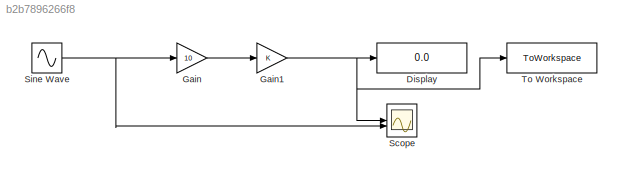
MODEL slx_b2b7896266f8
KIND model
CONFIG AbsTol = auto
CONFIG EnableMultiTasking = off
CONFIG FixedStep = auto
CONFIG MaxStep = auto
CONFIG MinStep = auto
CONFIG RelTol = 1e-3
CONFIG SampleTimeConstraint = Unconstrained
CONFIG SolverName = VariableStepAuto
CONFIG StartTime = 0.0
CONFIG StopTime = 1000000
BLOCK [Display] Display
  Decimation = 1
BLOCK [Gain] Gain
  Gain = 10
BLOCK [Gain] Gain1
BLOCK [Scope] Scope
  Floating = off
  NumInputPorts = 2
  ScopeSpecificationString = Simulink.scopes.TimeScopeBlockCfg('CurrentConfiguration', extmgr.ConfigurationSet(extmgr.Configuration('Core','General UI',true),extmgr.Configuration('Core','Source UI',true),extmgr.Configuration('Sources','WiredSimulink',true),extmgr.Configuration('Visuals','Time Domain',true,'SerializedDisplays',{struct('MinYLimReal','-0.63679','MaxYLimReal','0.68383','YLabelReal','','MinYLimMag','0.00000','MaxY...<+1473ch>
BLOCK [Sin] Sine Wave
  Amplitude = 0.05
  Frequency = 628.3185
  SampleTime = 0.1
BLOCK [ToWorkspace] To Workspace
  FixptAsFi = on
  MaxDataPoints = inf
  SampleTime = -1
  SaveFormat = Timeseries
  VariableName = result1
NET Gain1:1 -> Display:1, Scope:1, To Workspace:1
LINE Gain:1 -> Gain1:1
NET Sine Wave:1 -> Gain:1, Scope:2
note: NET lines group one-source signal fan-out (src -> all destinations, sorted); 1:1 wires keep LINE
